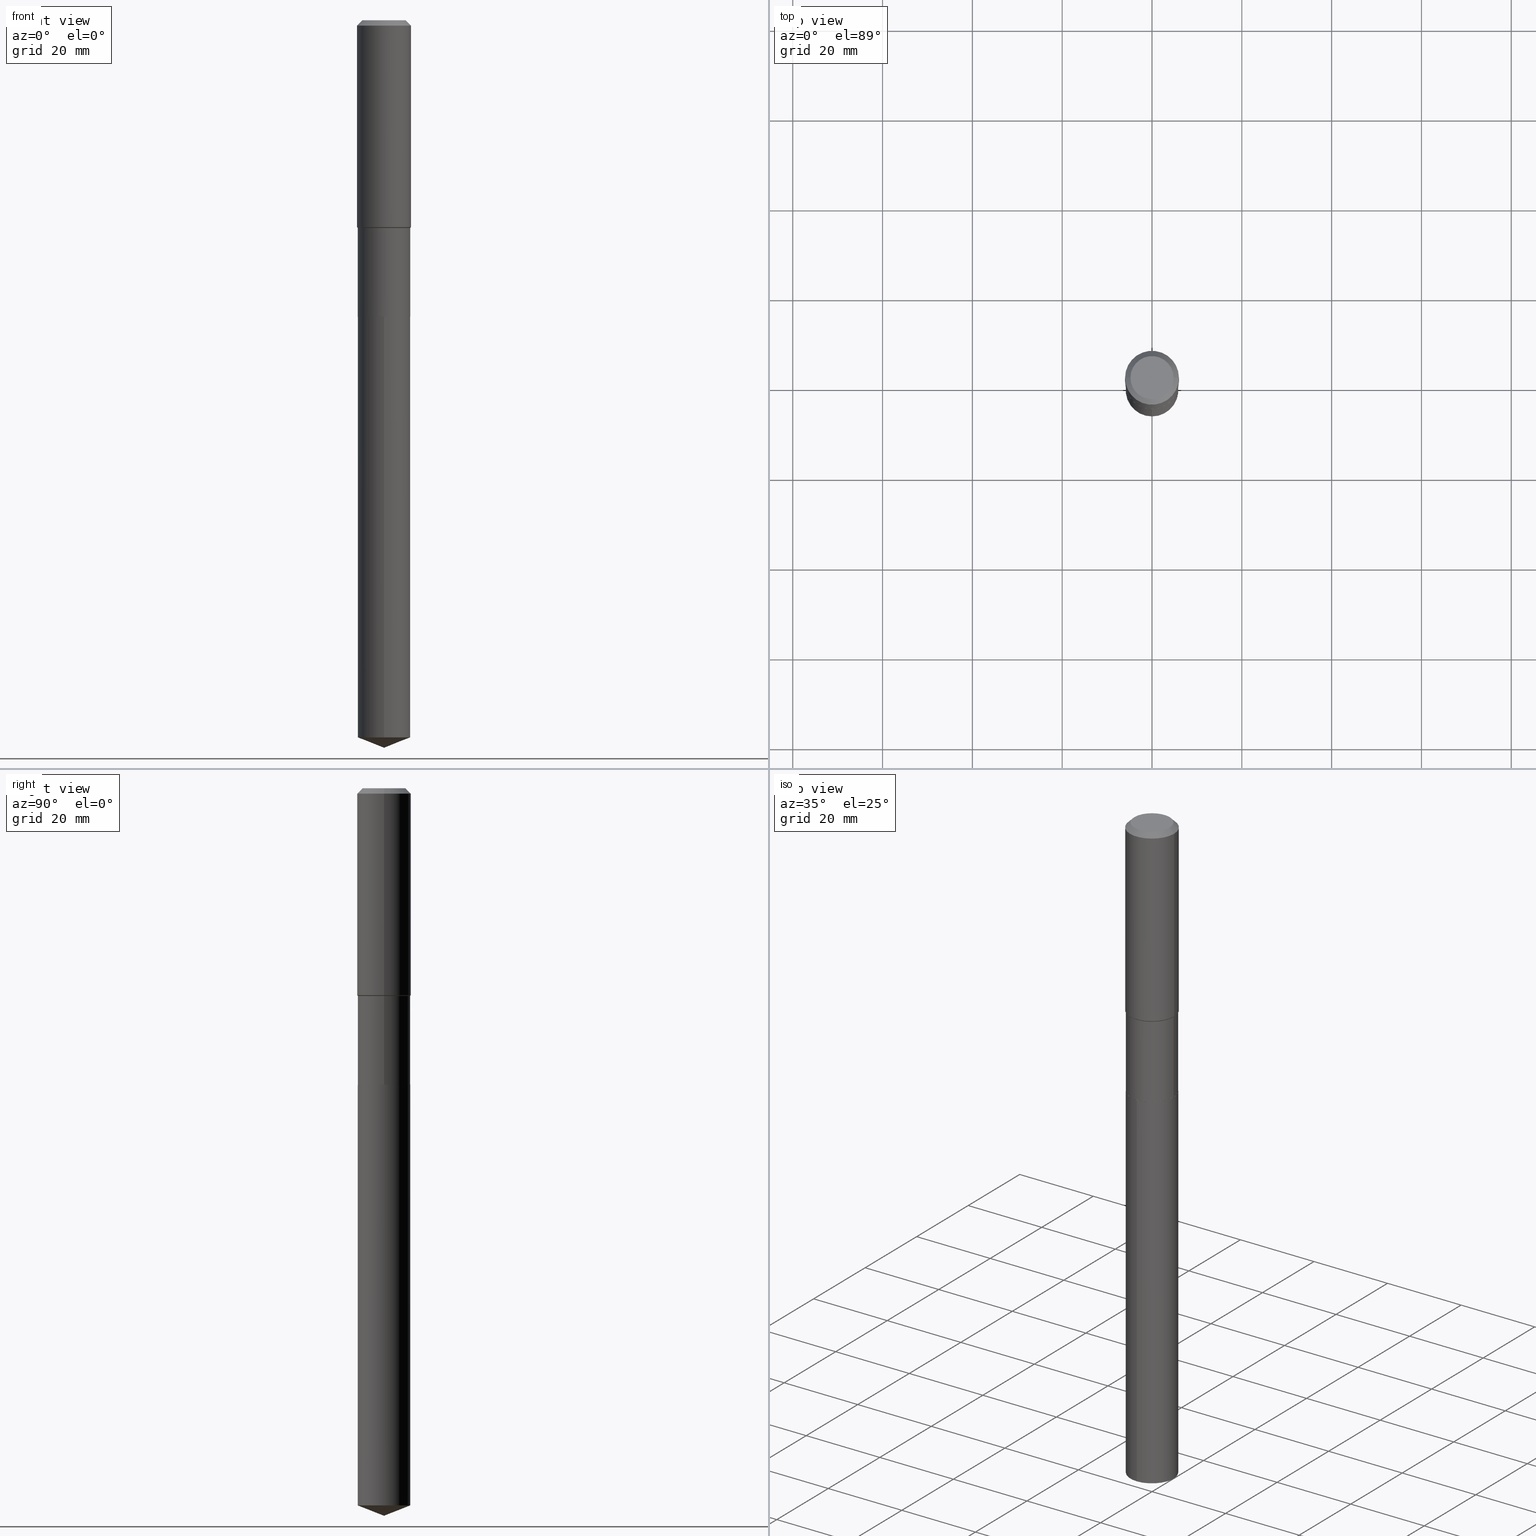
[diagram: canonical four-view strip — front | top / right | iso, engineering-drawing reading convention]
A machine part, canonical four-view strip (front | top / right | iso — engineering-drawing reading convention). The complete STEP part file that produces these views, byte-faithful:
ISO-10303-21;
HEADER;
FILE_DESCRIPTION (( 'STEP AP203' ),
    '1' );
FILE_NAME ('66693.STEP',
    '2024-04-25T03:52:17',
    ( '' ),
    ( '' ),
    'SwSTEP 2.0',
    'SolidWorks 2023',
    '' );
FILE_SCHEMA (( 'CONFIG_CONTROL_DESIGN' ));
ENDSEC;

DATA;
#1 = DATE_AND_TIME ( #409, #291 ) ;
#2 = AXIS2_PLACEMENT_3D ( 'NONE', #484, #67, #62 ) ;
#3 = VERTEX_POINT ( 'NONE', #185 ) ;
#4 = CC_DESIGN_SECURITY_CLASSIFICATION ( #268, ( #314 ) ) ;
#5 = EDGE_CURVE ( 'NONE', #479, #179, #199, .T. ) ;
#6 = PERSON_AND_ORGANIZATION ( #461, #338 ) ;
#7 = DIRECTION ( 'NONE',  ( -6.982962677686265922E-15, -1.000000000000000000, 2.372425526412734110E-15 ) ) ;
#8 = ORIENTED_EDGE ( 'NONE', *, *, #299, .F. ) ;
#9 = APPROVAL ( #262, 'UNSPECIFIED' ) ;
#10 = DIRECTION ( 'NONE',  ( -2.445468806185136597E-29, 3.491481338843145583E-15, 1.000000000000000000 ) ) ;
#11 = AXIS2_PLACEMENT_3D ( 'NONE', #13, #235, #162 ) ;
#12 = APPLICATION_CONTEXT ( 'configuration controlled 3d designs of mechanical parts and assemblies' ) ;
#13 = CARTESIAN_POINT ( 'NONE',  ( 4.452220508540662569E-29, -6.356590925497835963E-15, -1.820600000000001328 ) ) ;
#14 = CALENDAR_DATE ( 2024, 24, 4 ) ;
#15 = DIRECTION ( 'NONE',  ( -6.982962677686265922E-15, -1.000000000000000000, 4.744851052825468220E-15 ) ) ;
#16 = EDGE_LOOP ( 'NONE', ( #369, #485, #99, #8 ) ) ;
#17 = FACE_OUTER_BOUND ( 'NONE', #131, .T. ) ;
#18 = MANIFOLD_SOLID_BREP ( 'Body-Move/Copy2[2]', #19 ) ;
#19 = CLOSED_SHELL ( 'NONE', ( #284, #75, #229, #119, #349, #213, #278, #164, #91, #48, #441, #431 ) ) ;
#20 = EDGE_CURVE ( 'NONE', #3, #134, #263, .T. ) ;
#21 = AXIS2_PLACEMENT_3D ( 'NONE', #401, #282, #214 ) ;
#22 = DIRECTION ( 'NONE',  ( 1.000000000000000000, -6.982962677686266711E-15, 4.876176775795936353E-29 ) ) ;
#23 = DIRECTION ( 'NONE',  ( 1.000000000000000000, -6.982962677686265922E-15, 4.876176775795935793E-29 ) ) ;
#24 = ORIENTED_EDGE ( 'NONE', *, *, #476, .T. ) ;
#25 = CC_DESIGN_DATE_AND_TIME_ASSIGNMENT ( #345, #350, ( #268 ) ) ;
#26 = DIRECTION ( 'NONE',  ( -2.445468806185136597E-29, 3.491481338843145583E-15, 1.000000000000000000 ) ) ;
#27 = EDGE_LOOP ( 'NONE', ( #83, #332 ) ) ;
#28 = LOCAL_TIME ( 23, 52, 17.00000000000000000, #389 ) ;
#29 = LINE ( 'NONE', #245, #435 ) ;
#30 = ORIENTED_EDGE ( 'NONE', *, *, #366, .T. ) ;
#31 = CARTESIAN_POINT ( 'NONE',  ( 6.354306145991461998E-29, -9.072265110850035778E-15, -2.598400000000001597 ) ) ;
#32 = VERTEX_POINT ( 'NONE', #414 ) ;
#33 = ADVANCED_FACE ( 'NONE', ( #449 ), #371, .T. ) ;
#34 = DIRECTION ( 'NONE',  ( 1.000000000000000000, -6.982962677686267499E-15, 0.000000000000000000 ) ) ;
#35 = ORIENTED_EDGE ( 'NONE', *, *, #5, .T. ) ;
#36 = VECTOR ( 'NONE', #54, 39.37007874015748854 ) ;
#37 = APPROVAL_ROLE ( '' ) ;
#38 = ORIENTED_EDGE ( 'NONE', *, *, #356, .F. ) ;
#39 = DIRECTION ( 'NONE',  ( -2.445449169258695004E-29, 3.491509460039474509E-15, 1.000000000000000000 ) ) ;
#40 = DESIGN_CONTEXT ( 'detailed design', #150, 'design' ) ;
#41 = PERSON_AND_ORGANIZATION ( #461, #338 ) ;
#42 = EDGE_CURVE ( 'NONE', #403, #3, #472, .T. ) ;
#43 = DIRECTION ( 'NONE',  ( -2.445449169258695004E-29, 3.491509460039474509E-15, 1.000000000000000000 ) ) ;
#44 = CARTESIAN_POINT ( 'NONE',  ( 6.354306145991460877E-29, -9.072265110850034200E-15, -2.598400000000000709 ) ) ;
#45 = DIMENSIONAL_EXPONENTS ( 1.000000000000000000, 0.000000000000000000, 0.000000000000000000, 0.000000000000000000, 0.000000000000000000, 0.000000000000000000, 0.000000000000000000 ) ;
#46 = PERSON_AND_ORGANIZATION_ROLE ( 'creator' ) ;
#47 = EDGE_LOOP ( 'NONE', ( #103, #161, #58, #202 ) ) ;
#48 = ADVANCED_FACE ( 'NONE', ( #149 ), #334, .F. ) ;
#49 = DIRECTION ( 'NONE',  ( -2.445468806185136597E-29, 3.491481338843145583E-15, 1.000000000000000000 ) ) ;
#50 = CARTESIAN_POINT ( 'NONE',  ( 4.437792242584169417E-29, -6.335991185598659855E-15, -1.814700000000001090 ) ) ;
#51 = AXIS2_PLACEMENT_3D ( 'NONE', #325, #130, #480 ) ;
#52 = ORIENTED_EDGE ( 'NONE', *, *, #128, .T. ) ;
#53 = VECTOR ( 'NONE', #397, 39.37007874015748143 ) ;
#54 = DIRECTION ( 'NONE',  ( 0.7071067811860403118, -2.468850131076945266E-15, 0.7071067811870545006 ) ) ;
#55 = CARTESIAN_POINT ( 'NONE',  ( 1.537503604435947827E-28, -2.195168381745942955E-14, -6.287182417465880135 ) ) ;
#56 = EDGE_CURVE ( 'NONE', #179, #90, #152, .T. ) ;
#57 = CARTESIAN_POINT ( 'NONE',  ( 4.452220508540662569E-29, -6.356590925497835963E-15, -1.820600000000001328 ) ) ;
#58 = ORIENTED_EDGE ( 'NONE', *, *, #387, .T. ) ;
#59 = VECTOR ( 'NONE', #192, 39.37007874015748143 ) ;
#60 = AXIS2_PLACEMENT_3D ( 'NONE', #118, #340, #7 ) ;
#61 = CARTESIAN_POINT ( 'NONE',  ( 2.040285390366419992E-29, -1.525018837171794076E-14, -2.598400000000001597 ) ) ;
#62 = DIRECTION ( 'NONE',  ( 1.000000000000000000, -6.982962677686266711E-15, 4.876185090822587894E-29 ) ) ;
#63 = ORIENTED_EDGE ( 'NONE', *, *, #327, .T. ) ;
#64 = FACE_OUTER_BOUND ( 'NONE', #319, .T. ) ;
#65 = ORIENTED_EDGE ( 'NONE', *, *, #476, .F. ) ;
#66 = CIRCLE ( 'NONE', #126, 0.2298000000000000043 ) ;
#67 = DIRECTION ( 'NONE',  ( -2.445468806185136597E-29, 3.491481338843145583E-15, 1.000000000000000000 ) ) ;
#68 = ORIENTED_EDGE ( 'NONE', *, *, #205, .T. ) ;
#69 = LINE ( 'NONE', #175, #147 ) ;
#70 = ORIENTED_EDGE ( 'NONE', *, *, #128, .F. ) ;
#71 = DIRECTION ( 'NONE',  ( 1.000000000000000000, -6.982962677686267499E-15, 0.000000000000000000 ) ) ;
#72 = ORIENTED_EDGE ( 'NONE', *, *, #222, .F. ) ;
#73 = CONICAL_SURFACE ( 'NONE', #51, 0.2298000000000000043, 0.7853981633967311859 ) ;
#74 = DIRECTION ( 'NONE',  ( 2.445468806185136597E-29, -3.491481338843145583E-15, -1.000000000000000000 ) ) ;
#75 = ADVANCED_FACE ( 'NONE', ( #226 ), #306, .T. ) ;
#76 = CALENDAR_DATE ( 2024, 24, 4 ) ;
#77 = LINE ( 'NONE', #265, #225 ) ;
#78 = DIRECTION ( 'NONE',  ( -2.445468806185136597E-29, 3.491481338843145583E-15, 1.000000000000000000 ) ) ;
#79 = DIRECTION ( 'NONE',  ( -2.445468806185136597E-29, 3.491481338843145583E-15, 1.000000000000000000 ) ) ;
#80 = APPROVAL_DATE_TIME ( #375, #9 ) ;
#81 = AXIS2_PLACEMENT_3D ( 'NONE', #232, #487, #460 ) ;
#82 = CIRCLE ( 'NONE', #190, 0.2362000000000000210 ) ;
#83 = ORIENTED_EDGE ( 'NONE', *, *, #341, .T. ) ;
#84 = ADVANCED_FACE ( 'NONE', ( #374 ), #154, .T. ) ;
#85 = DIRECTION ( 'NONE',  ( 2.445449169258694724E-29, -3.491509460039474509E-15, -1.000000000000000000 ) ) ;
#86 = DIRECTION ( 'NONE',  ( 1.000000000000000000, -6.982962677686265922E-15, 0.000000000000000000 ) ) ;
#87 = ORIENTED_EDGE ( 'NONE', *, *, #272, .T. ) ;
#88 = DIRECTION ( 'NONE',  ( -2.445468806185136597E-29, 3.491481338843145583E-15, 1.000000000000000000 ) ) ;
#89 = CONICAL_SURFACE ( 'NONE', #337, 0.2302999999999998937, 0.7853981633974482790 ) ;
#90 = VERTEX_POINT ( 'NONE', #458 ) ;
#91 = ADVANCED_FACE ( 'NONE', ( #267 ), #281, .T. ) ;
#92 = CARTESIAN_POINT ( 'NONE',  ( 1.537503604435947827E-28, -2.195168381745942955E-14, -6.287182417465880135 ) ) ;
#93 = CARTESIAN_POINT ( 'NONE',  ( 1.559683025661503327E-28, -2.226849818518576806E-14, -6.377900000000001235 ) ) ;
#94 = DIRECTION ( 'NONE',  ( -2.445449169258695004E-29, 3.491509460039474509E-15, 1.000000000000000000 ) ) ;
#95 = PRODUCT_DEFINITION ( 'UNKNOWN', '', #314, #40 ) ;
#96 = AXIS2_PLACEMENT_3D ( 'NONE', #271, #74, #224 ) ;
#97 = VECTOR ( 'NONE', #94, 39.37007874015748143 ) ;
#98 = DIRECTION ( 'NONE',  ( -6.982962677686265922E-15, -1.000000000000000000, 2.372425526412734110E-15 ) ) ;
#99 = ORIENTED_EDGE ( 'NONE', *, *, #333, .F. ) ;
#100 = DIRECTION ( 'NONE',  ( 1.000000000000000000, -6.982962677686267499E-15, 0.000000000000000000 ) ) ;
#101 = ORIENTED_EDGE ( 'NONE', *, *, #234, .F. ) ;
#102 = CARTESIAN_POINT ( 'NONE',  ( 1.155239464041866207E-30, -1.649375784469512845E-16, -0.04724000000000030952 ) ) ;
#103 = ORIENTED_EDGE ( 'NONE', *, *, #193, .F. ) ;
#104 = AXIS2_PLACEMENT_3D ( 'NONE', #55, #316, #156 ) ;
#105 = APPROVAL_PERSON_ORGANIZATION ( #6, #143, #37 ) ;
#106 = EDGE_CURVE ( 'NONE', #446, #329, #77, .T. ) ;
#107 = LINE ( 'NONE', #362, #474 ) ;
#108 = ORIENTED_EDGE ( 'NONE', *, *, #333, .T. ) ;
#109 =( LENGTH_UNIT ( ) NAMED_UNIT ( * ) SI_UNIT ( $, .METRE. ) );
#110 = ORIENTED_EDGE ( 'NONE', *, *, #327, .F. ) ;
#111 =( NAMED_UNIT ( * ) SI_UNIT ( $, .STERADIAN. ) SOLID_ANGLE_UNIT ( ) );
#112 = DIRECTION ( 'NONE',  ( 2.438088387897960049E-29, -3.491481338843145188E-15, -1.000000000000000000 ) ) ;
#113 = CC_DESIGN_PERSON_AND_ORGANIZATION_ASSIGNMENT ( #347, #425, ( #268 ) ) ;
#114 = CIRCLE ( 'NONE', #354, 0.2302999999999998937 ) ;
#115 = APPROVAL_PERSON_ORGANIZATION ( #457, #9, #416 ) ;
#116 = COORDINATED_UNIVERSAL_TIME_OFFSET ( 5, 0, .BEHIND. ) ;
#117 = DIRECTION ( 'NONE',  ( -1.000000000000000000, 6.982962677686267499E-15, 0.000000000000000000 ) ) ;
#118 = CARTESIAN_POINT ( 'NONE',  ( 6.354306145991460877E-29, -9.072265110850034200E-15, -2.598400000000000709 ) ) ;
#119 = ADVANCED_FACE ( 'NONE', ( #227 ), #89, .T. ) ;
#120 = DIRECTION ( 'NONE',  ( 1.000000000000000000, -6.982962677686265922E-15, 0.000000000000000000 ) ) ;
#121 = CARTESIAN_POINT ( 'NONE',  ( -0.2302999999999999214, 1.636379920455510170E-15, -1.132830751285704470E-29 ) ) ;
#122 = CARTESIAN_POINT ( 'NONE',  ( -1.608176304670993438E-15, -0.2303000000000219594, -6.287182417465879247 ) ) ;
#123 = CARTESIAN_POINT ( 'NONE',  ( 0.2362000000000000210, -1.814313362916447834E-15, -0.04724000000000030952 ) ) ;
#124 = ADVANCED_FACE ( 'NONE', ( #189 ), #415, .T. ) ;
#125 = DIRECTION ( 'NONE',  ( -0.7071067811865474617, 7.493145998870352582E-15, 0.7071067811865474617 ) ) ;
#126 = AXIS2_PLACEMENT_3D ( 'NONE', #31, #286, #439 ) ;
#127 = CARTESIAN_POINT ( 'NONE',  ( 0.2302999999999998937, -7.964767230168983427E-15, -1.820600000000001328 ) ) ;
#128 = EDGE_CURVE ( 'NONE', #32, #446, #422, .T. ) ;
#129 = DIRECTION ( 'NONE',  ( 1.000000000000000000, -6.982962677686269077E-15, 0.000000000000000000 ) ) ;
#130 = DIRECTION ( 'NONE',  ( -2.445468806185136597E-29, 3.491481338843145583E-15, 1.000000000000000000 ) ) ;
#131 = EDGE_LOOP ( 'NONE', ( #148, #63, #257, #239 ) ) ;
#132 = AXIS2_PLACEMENT_3D ( 'NONE', #251, #395, #135 ) ;
#133 = LINE ( 'NONE', #288, #307 ) ;
#134 = VERTEX_POINT ( 'NONE', #123 ) ;
#135 = DIRECTION ( 'NONE',  ( -6.982962677686265922E-15, -1.000000000000000000, 2.372425526412734110E-15 ) ) ;
#136 = ORIENTED_EDGE ( 'NONE', *, *, #341, .F. ) ;
#137 = EDGE_CURVE ( 'NONE', #179, #479, #451, .T. ) ;
#138 = CARTESIAN_POINT ( 'NONE',  ( 4.452220508540662569E-29, -6.356590925497835963E-15, -1.820600000000001328 ) ) ;
#139 = VERTEX_POINT ( 'NONE', #280 ) ;
#140 = CIRCLE ( 'NONE', #182, 0.2303000000000000047 ) ;
#141 = DIRECTION ( 'NONE',  ( -2.445449169258695004E-29, 3.491509460039474509E-15, 1.000000000000000000 ) ) ;
#142 = ORIENTED_EDGE ( 'NONE', *, *, #408, .T. ) ;
#143 = APPROVAL ( #370, 'UNSPECIFIED' ) ;
#144 = CARTESIAN_POINT ( 'NONE',  ( 4.437792242584169417E-29, -6.335991185598659855E-15, -1.814700000000001090 ) ) ;
#145 = CALENDAR_DATE ( 2024, 24, 4 ) ;
#146 = CARTESIAN_POINT ( 'NONE',  ( 1.155239464041866207E-30, -1.649375784469512845E-16, -0.04724000000000030952 ) ) ;
#147 = VECTOR ( 'NONE', #475, 39.37007874015748143 ) ;
#148 = ORIENTED_EDGE ( 'NONE', *, *, #234, .T. ) ;
#149 = FACE_OUTER_BOUND ( 'NONE', #27, .T. ) ;
#150 = APPLICATION_CONTEXT ( 'configuration controlled 3d designs of mechanical parts and assemblies' ) ;
#151 = CC_DESIGN_DATE_AND_TIME_ASSIGNMENT ( #450, #380, ( #95 ) ) ;
#152 = LINE ( 'NONE', #121, #59 ) ;
#153 = SECURITY_CLASSIFICATION_LEVEL ( 'unclassified' ) ;
#154 = CONICAL_SURFACE ( 'NONE', #434, 99.94676754583925060, 1.195550537616117071 ) ;
#155 = AXIS2_PLACEMENT_3D ( 'NONE', #346, #49, #196 ) ;
#156 = DIRECTION ( 'NONE',  ( -6.982962677686265922E-15, -1.000000000000000000, 4.744851052825468220E-15 ) ) ;
#157 = DATE_AND_TIME ( #14, #28 ) ;
#158 = DIRECTION ( 'NONE',  ( 6.611014441532060278E-15, 0.9304175679820263500, 0.3665012267242928057 ) ) ;
#159 = APPROVAL ( #198, 'UNSPECIFIED' ) ;
#160 = DIRECTION ( 'NONE',  ( -0.7071067811860403118, 7.493145998868519270E-15, 0.7071067811870545006 ) ) ;
#161 = ORIENTED_EDGE ( 'NONE', *, *, #317, .T. ) ;
#162 = DIRECTION ( 'NONE',  ( 1.000000000000000000, -6.982962677686269077E-15, 0.000000000000000000 ) ) ;
#163 = CONICAL_SURFACE ( 'NONE', #269, 0.2302999999999998937, 0.7853981633974482790 ) ;
#164 = ADVANCED_FACE ( 'NONE', ( #242 ), #426, .T. ) ;
#165 = CARTESIAN_POINT ( 'NONE',  ( 0.000000000000000000, 0.000000000000000000, 0.000000000000000000 ) ) ;
#166 = PRODUCT_RELATED_PRODUCT_CATEGORY ( 'detail', '', ( #174 ) ) ;
#167 = CARTESIAN_POINT ( 'NONE',  ( 1.636379920455664589E-15, 0.2302999999999780778, -6.287182417465881024 ) ) ;
#168 = EDGE_LOOP ( 'NONE', ( #72, #421, #212, #407 ) ) ;
#169 = MANIFOLD_SOLID_BREP ( 'Body-Move/Copy2[1]', #292 ) ;
#170 = CARTESIAN_POINT ( 'NONE',  ( 0.000000000000000000, 0.000000000000000000, 0.000000000000000000 ) ) ;
#171 = ORIENTED_EDGE ( 'NONE', *, *, #417, .F. ) ;
#172 = AXIS2_PLACEMENT_3D ( 'NONE', #170, #211, #445 ) ;
#173 = AXIS2_PLACEMENT_3D ( 'NONE', #303, #373, #489 ) ;
#174 = PRODUCT ( '66693', '66693', '', ( #454 ) ) ;
#175 = CARTESIAN_POINT ( 'NONE',  ( 0.2362000000000000210, -1.785387205520587177E-15, -0.04724000000000030952 ) ) ;
#176 = EDGE_CURVE ( 'NONE', #244, #446, #253, .T. ) ;
#177 = ORIENTED_EDGE ( 'NONE', *, *, #197, .F. ) ;
#178 = FACE_OUTER_BOUND ( 'NONE', #221, .T. ) ;
#179 = VERTEX_POINT ( 'NONE', #309 ) ;
#180 = FACE_OUTER_BOUND ( 'NONE', #195, .T. ) ;
#181 = VERTEX_POINT ( 'NONE', #308 ) ;
#182 = AXIS2_PLACEMENT_3D ( 'NONE', #92, #207, #15 ) ;
#183 = ADVANCED_FACE ( 'NONE', ( #204 ), #392, .F. ) ;
#184 = PERSON_AND_ORGANIZATION ( #461, #338 ) ;
#185 = CARTESIAN_POINT ( 'NONE',  ( 0.2362000000000002431, -7.985366970068157957E-15, -1.814700000000001090 ) ) ;
#186 = LENGTH_MEASURE_WITH_UNIT ( LENGTH_MEASURE( 0.02539999999999999897 ), #109 );
#187 = DIRECTION ( 'NONE',  ( -6.982962677686267499E-15, -1.000000000000000000, 3.498627837350029466E-15 ) ) ;
#188 = PERSON_AND_ORGANIZATION_ROLE ( 'design_supplier' ) ;
#189 = FACE_OUTER_BOUND ( 'NONE', #16, .T. ) ;
#190 = AXIS2_PLACEMENT_3D ( 'NONE', #102, #323, #100 ) ;
#191 = PERSON_AND_ORGANIZATION ( #461, #338 ) ;
#192 = DIRECTION ( 'NONE',  ( -2.445468806185136877E-29, 3.491481338843145188E-15, 1.000000000000000000 ) ) ;
#193 = EDGE_CURVE ( 'NONE', #181, #440, #275, .T. ) ;
#194 = PERSON_AND_ORGANIZATION ( #461, #338 ) ;
#195 = EDGE_LOOP ( 'NONE', ( #448, #52, #342 ) ) ;
#196 = DIRECTION ( 'NONE',  ( 1.000000000000000000, -6.982962677686266711E-15, 4.876185090822587894E-29 ) ) ;
#197 = EDGE_CURVE ( 'NONE', #446, #244, #140, .T. ) ;
#198 = APPROVAL_STATUS ( 'not_yet_approved' ) ;
#199 = CIRCLE ( 'NONE', #81, 0.2303000000000000047 ) ;
#200 = CIRCLE ( 'NONE', #483, 0.2303000000000000047 ) ;
#201 = CARTESIAN_POINT ( 'NONE',  ( -0.2302999999999998937, -4.720211005042326385E-15, -1.820600000000001328 ) ) ;
#202 = ORIENTED_EDGE ( 'NONE', *, *, #408, .F. ) ;
#203 = CARTESIAN_POINT ( 'NONE',  ( -0.2362000000000000210, -1.572162440157448004E-15, -0.04724000000000030952 ) ) ;
#204 = FACE_OUTER_BOUND ( 'NONE', #285, .T. ) ;
#205 = EDGE_CURVE ( 'NONE', #209, #90, #300, .T. ) ;
#206 = AXIS2_PLACEMENT_3D ( 'NONE', #381, #112, #304 ) ;
#207 = DIRECTION ( 'NONE',  ( -2.445449169258695004E-29, 3.491509460039474509E-15, 1.000000000000000000 ) ) ;
#208 = VECTOR ( 'NONE', #467, 39.37007874015748143 ) ;
#209 = VERTEX_POINT ( 'NONE', #127 ) ;
#210 = FACE_OUTER_BOUND ( 'NONE', #405, .T. ) ;
#211 = DIRECTION ( 'NONE',  ( -2.445468806185136597E-29, 3.491481338843145583E-15, 1.000000000000000000 ) ) ;
#212 = ORIENTED_EDGE ( 'NONE', *, *, #417, .T. ) ;
#213 = ADVANCED_FACE ( 'NONE', ( #241 ), #355, .T. ) ;
#214 = DIRECTION ( 'NONE',  ( -6.982962677686267499E-15, -1.000000000000000000, 3.498627837350029466E-15 ) ) ;
#215 = ORIENTED_EDGE ( 'NONE', *, *, #197, .T. ) ;
#216 = AXIS2_PLACEMENT_3D ( 'NONE', #466, #10, #388 ) ;
#217 = CC_DESIGN_APPROVAL ( #143, ( #95 ) ) ;
#218 = DIRECTION ( 'NONE',  ( 0.7071067811865474617, -2.468850131082256666E-15, 0.7071067811865474617 ) ) ;
#219 = EDGE_LOOP ( 'NONE', ( #68, #236, #101, #171 ) ) ;
#220 = CARTESIAN_POINT ( 'NONE',  ( 1.636379920455664984E-15, 0.2302999999999909564, -2.598400000000001597 ) ) ;
#221 = EDGE_LOOP ( 'NONE', ( #481, #398, #248, #452 ) ) ;
#222 = EDGE_CURVE ( 'NONE', #90, #403, #351, .T. ) ;
#223 =( NAMED_UNIT ( * ) PLANE_ANGLE_UNIT ( ) SI_UNIT ( $, .RADIAN. ) );
#224 = DIRECTION ( 'NONE',  ( -1.000000000000000000, 6.982962677686267499E-15, 0.000000000000000000 ) ) ;
#225 = VECTOR ( 'NONE', #378, 39.37007874015748143 ) ;
#226 = FACE_OUTER_BOUND ( 'NONE', #47, .T. ) ;
#227 = FACE_OUTER_BOUND ( 'NONE', #219, .T. ) ;
#228 = APPLICATION_PROTOCOL_DEFINITION ( 'international standard', 'config_control_design', 1994, #12 ) ;
#229 = ADVANCED_FACE ( 'NONE', ( #17 ), #315, .T. ) ;
#230 = ORIENTED_EDGE ( 'NONE', *, *, #399, .T. ) ;
#231 = CIRCLE ( 'NONE', #132, 0.2303000000000000047 ) ;
#232 = CARTESIAN_POINT ( 'NONE',  ( 6.353083411588368076E-29, -9.070519370180611907E-15, -2.597900000000000542 ) ) ;
#233 = DIRECTION ( 'NONE',  ( -2.445468806185136597E-29, 3.491481338843145583E-15, 1.000000000000000000 ) ) ;
#234 = EDGE_CURVE ( 'NONE', #3, #403, #400, .T. ) ;
#235 = DIRECTION ( 'NONE',  ( -2.445468806185136597E-29, 3.491481338843145583E-15, 1.000000000000000000 ) ) ;
#236 = ORIENTED_EDGE ( 'NONE', *, *, #222, .T. ) ;
#237 = LOCAL_TIME ( 23, 52, 17.00000000000000000, #413 ) ;
#238 = DIRECTION ( 'NONE',  ( 1.000000000000000000, -6.982962677686266711E-15, 4.876176775795935793E-29 ) ) ;
#239 = ORIENTED_EDGE ( 'NONE', *, *, #20, .F. ) ;
#240 = APPROVAL_ROLE ( '' ) ;
#241 = FACE_OUTER_BOUND ( 'NONE', #438, .T. ) ;
#242 = FACE_OUTER_BOUND ( 'NONE', #367, .T. ) ;
#243 = EDGE_CURVE ( 'NONE', #139, #479, #429, .T. ) ;
#244 = VERTEX_POINT ( 'NONE', #122 ) ;
#245 = CARTESIAN_POINT ( 'NONE',  ( 0.2302999999999998937, -7.964767230168983427E-15, -1.820600000000001328 ) ) ;
#246 = CONICAL_SURFACE ( 'NONE', #21, 99.94676754583925060, 1.195550537616117071 ) ;
#247 = LINE ( 'NONE', #433, #97 ) ;
#248 = ORIENTED_EDGE ( 'NONE', *, *, #243, .T. ) ;
#249 = CARTESIAN_POINT ( 'NONE',  ( -0.2298000000000000043, -7.436788676899211953E-15, -2.598400000000001597 ) ) ;
#250 = VERTEX_POINT ( 'NONE', #203 ) ;
#251 = CARTESIAN_POINT ( 'NONE',  ( 6.354306145991460877E-29, -9.072265110850034200E-15, -2.598400000000000709 ) ) ;
#252 = ORIENTED_EDGE ( 'NONE', *, *, #56, .T. ) ;
#253 = CIRCLE ( 'NONE', #104, 0.2303000000000000047 ) ;
#254 = CARTESIAN_POINT ( 'NONE',  ( -0.1889600000000000168, 1.401969416799070942E-15, 3.855188123706346622E-18 ) ) ;
#255 = CC_DESIGN_PERSON_AND_ORGANIZATION_ASSIGNMENT ( #184, #258, ( #95 ) ) ;
#256 = ORIENTED_EDGE ( 'NONE', *, *, #299, .T. ) ;
#257 = ORIENTED_EDGE ( 'NONE', *, *, #387, .F. ) ;
#258 = PERSON_AND_ORGANIZATION_ROLE ( 'creator' ) ;
#259 = DIRECTION ( 'NONE',  ( -6.982962677686265922E-15, -1.000000000000000000, 2.372425526412734110E-15 ) ) ;
#260 = AXIS2_PLACEMENT_3D ( 'NONE', #144, #411, #120 ) ;
#261 = AXIS2_PLACEMENT_3D ( 'NONE', #447, #296, #335 ) ;
#262 = APPROVAL_STATUS ( 'not_yet_approved' ) ;
#263 = LINE ( 'NONE', #336, #473 ) ;
#264 = EDGE_CURVE ( 'NONE', #396, #179, #348, .T. ) ;
#265 = CARTESIAN_POINT ( 'NONE',  ( 1.636379920455574068E-15, 0.2302999999999909286, -2.598400000000001597 ) ) ;
#266 = CARTESIAN_POINT ( 'NONE',  ( 0.2303000000000000047, -1.067869567485175779E-14, -2.597900000000000542 ) ) ;
#267 = FACE_OUTER_BOUND ( 'NONE', #295, .T. ) ;
#268 = SECURITY_CLASSIFICATION ( '', '', #153 ) ;
#269 = AXIS2_PLACEMENT_3D ( 'NONE', #57, #469, #129 ) ;
#270 = APPROVAL_PERSON_ORGANIZATION ( #459, #159, #240 ) ;
#271 = CARTESIAN_POINT ( 'NONE',  ( 1.155239464041866207E-30, -1.649375784469512845E-16, -0.04724000000000030952 ) ) ;
#272 = EDGE_CURVE ( 'NONE', #32, #244, #310, .T. ) ;
#273 = CARTESIAN_POINT ( 'NONE',  ( -0.2298000000000000043, -7.439437904073325520E-15, -2.598400000000001597 ) ) ;
#274 = CARTESIAN_POINT ( 'NONE',  ( 6.354306145991460877E-29, -9.072265110850034200E-15, -2.598400000000000709 ) ) ;
#275 = CIRCLE ( 'NONE', #155, 0.1889600000000000168 ) ;
#276 = FACE_OUTER_BOUND ( 'NONE', #168, .T. ) ;
#277 = ORIENTED_EDGE ( 'NONE', *, *, #366, .F. ) ;
#278 = ADVANCED_FACE ( 'NONE', ( #276 ), #163, .T. ) ;
#279 = DIRECTION ( 'NONE',  ( -2.445468806185136597E-29, 3.491481338843145583E-15, 1.000000000000000000 ) ) ;
#280 = CARTESIAN_POINT ( 'NONE',  ( 0.2298000000000000043, -1.067694993418234023E-14, -2.598400000000001597 ) ) ;
#281 = CONICAL_SURFACE ( 'NONE', #344, 0.2362000000000000210, 0.7853981633974452814 ) ;
#282 = DIRECTION ( 'NONE',  ( -2.445449169258695004E-29, 3.491509460039474509E-15, 1.000000000000000000 ) ) ;
#283 = AXIS2_PLACEMENT_3D ( 'NONE', #61, #357, #23 ) ;
#284 = ADVANCED_FACE ( 'NONE', ( #64 ), #294, .T. ) ;
#285 = EDGE_LOOP ( 'NONE', ( #108, #418 ) ) ;
#286 = DIRECTION ( 'NONE',  ( -2.445468806185136597E-29, 3.491481338843145583E-15, 1.000000000000000000 ) ) ;
#287 = ORIENTED_EDGE ( 'NONE', *, *, #243, .F. ) ;
#288 = CARTESIAN_POINT ( 'NONE',  ( -0.2362000000000001321, 1.678301941865357577E-15, -1.161852468318209457E-29 ) ) ;
#289 = ORIENTED_EDGE ( 'NONE', *, *, #424, .F. ) ;
#290 = CARTESIAN_POINT ( 'NONE',  ( -1.608176304671083368E-15, -0.2303000000000090808, -2.598400000000000265 ) ) ;
#291 = LOCAL_TIME ( 23, 52, 17.00000000000000000, #116 ) ;
#292 = CLOSED_SHELL ( 'NONE', ( #124, #311, #84, #33, #183 ) ) ;
#293 = ORIENTED_EDGE ( 'NONE', *, *, #205, .F. ) ;
#294 = CONICAL_SURFACE ( 'NONE', #444, 0.2298000000000000043, 0.7853981633967311859 ) ;
#295 = EDGE_LOOP ( 'NONE', ( #305, #136, #142, #24 ) ) ;
#296 = DIRECTION ( 'NONE',  ( -2.445468806185136597E-29, 3.491481338843145583E-15, 1.000000000000000000 ) ) ;
#297 = CARTESIAN_POINT ( 'NONE',  ( -8.068064506756283072E-28, 1.151925772486896208E-13, 32.99217874015747753 ) ) ;
#298 = DIRECTION ( 'NONE',  ( 2.445468806185136597E-29, -3.491481338843145583E-15, -1.000000000000000000 ) ) ;
#299 = EDGE_CURVE ( 'NONE', #244, #360, #247, .T. ) ;
#300 = CIRCLE ( 'NONE', #11, 0.2302999999999998937 ) ;
#301 =( CONVERSION_BASED_UNIT ( 'INCH', #186 ) LENGTH_UNIT ( ) NAMED_UNIT ( #45 ) );
#302 = DIRECTION ( 'NONE',  ( -2.445468806185136877E-29, 3.491481338843145188E-15, 1.000000000000000000 ) ) ;
#303 = CARTESIAN_POINT ( 'NONE',  ( 0.000000000000000000, 0.000000000000000000, 0.000000000000000000 ) ) ;
#304 = DIRECTION ( 'NONE',  ( -1.000000000000000000, 6.982962677686265922E-15, -4.876176775795935793E-29 ) ) ;
#305 = ORIENTED_EDGE ( 'NONE', *, *, #317, .F. ) ;
#306 = CONICAL_SURFACE ( 'NONE', #96, 0.2362000000000000210, 0.7853981633974452814 ) ;
#307 = VECTOR ( 'NONE', #328, 39.37007874015748143 ) ;
#308 = CARTESIAN_POINT ( 'NONE',  ( 0.1889600000000000168, -1.540873453589747935E-15, 3.855188123725863225E-18 ) ) ;
#309 = CARTESIAN_POINT ( 'NONE',  ( -0.2302999999999999770, -6.077175227383711991E-15, -2.597900000000000542 ) ) ;
#310 = LINE ( 'NONE', #93, #208 ) ;
#311 = ADVANCED_FACE ( 'NONE', ( #180 ), #246, .T. ) ;
#312 = LOCAL_TIME ( 23, 52, 17.00000000000000000, #382 ) ;
#313 = VECTOR ( 'NONE', #158, 39.37007874015748143 ) ;
#314 = PRODUCT_DEFINITION_FORMATION_WITH_SPECIFIED_SOURCE ( 'ANY', '', #174, .NOT_KNOWN. ) ;
#315 = CYLINDRICAL_SURFACE ( 'NONE', #216, 0.2362000000000001321 ) ;
#316 = DIRECTION ( 'NONE',  ( -2.445449169258695004E-29, 3.491509460039474509E-15, 1.000000000000000000 ) ) ;
#317 = EDGE_CURVE ( 'NONE', #181, #134, #69, .T. ) ;
#318 = FACE_OUTER_BOUND ( 'NONE', #423, .T. ) ;
#319 = EDGE_LOOP ( 'NONE', ( #30, #364, #443, #287 ) ) ;
#320 = AXIS2_PLACEMENT_3D ( 'NONE', #390, #233, #86 ) ;
#321 = CARTESIAN_POINT ( 'NONE',  ( -0.2362000000000002431, -4.657689243733302672E-15, -1.814700000000001090 ) ) ;
#322 = ORIENTED_EDGE ( 'NONE', *, *, #399, .F. ) ;
#323 = DIRECTION ( 'NONE',  ( -2.445468806185136597E-29, 3.491481338843145583E-15, 1.000000000000000000 ) ) ;
#324 = EDGE_LOOP ( 'NONE', ( #70, #87, #177 ) ) ;
#325 = CARTESIAN_POINT ( 'NONE',  ( 6.354306145991461998E-29, -9.072265110850035778E-15, -2.598400000000001597 ) ) ;
#326 = ORIENTED_EDGE ( 'NONE', *, *, #456, .F. ) ;
#327 = EDGE_CURVE ( 'NONE', #403, #250, #133, .T. ) ;
#328 = DIRECTION ( 'NONE',  ( -2.445468806185136877E-29, 3.491481338843145188E-15, 1.000000000000000000 ) ) ;
#329 = VERTEX_POINT ( 'NONE', #220 ) ;
#330 = AXIS2_PLACEMENT_3D ( 'NONE', #165, #343, #22 ) ;
#331 = APPROVAL_DATE_TIME ( #1, #143 ) ;
#332 = ORIENTED_EDGE ( 'NONE', *, *, #193, .T. ) ;
#333 = EDGE_CURVE ( 'NONE', #360, #329, #231, .T. ) ;
#334 = PLANE ( 'NONE',  #206 ) ;
#335 = DIRECTION ( 'NONE',  ( 1.000000000000000000, -6.982962677686267499E-15, 0.000000000000000000 ) ) ;
#336 = CARTESIAN_POINT ( 'NONE',  ( 0.2362000000000001321, -1.649375784469497117E-15, 1.151752954443000789E-29 ) ) ;
#337 = AXIS2_PLACEMENT_3D ( 'NONE', #455, #79, #376 ) ;
#338 = ORGANIZATION ( 'UNSPECIFIED', 'UNSPECIFIED', '' ) ;
#339 = APPLICATION_PROTOCOL_DEFINITION ( 'international standard', 'config_control_design', 1994, #150 ) ;
#340 = DIRECTION ( 'NONE',  ( -2.445449169258695004E-29, 3.491509460039474509E-15, 1.000000000000000000 ) ) ;
#341 = EDGE_CURVE ( 'NONE', #440, #181, #427, .T. ) ;
#342 = ORIENTED_EDGE ( 'NONE', *, *, #176, .F. ) ;
#343 = DIRECTION ( 'NONE',  ( -2.445468806185136597E-29, 3.491481338843145583E-15, 1.000000000000000000 ) ) ;
#344 = AXIS2_PLACEMENT_3D ( 'NONE', #146, #298, #117 ) ;
#345 = DATE_AND_TIME ( #391, #312 ) ;
#346 = CARTESIAN_POINT ( 'NONE',  ( -9.427742298522546243E-47, 1.346031739168365344E-32, 3.855188123715862256E-18 ) ) ;
#347 = PERSON_AND_ORGANIZATION ( #461, #338 ) ;
#348 = LINE ( 'NONE', #273, #462 ) ;
#349 = ADVANCED_FACE ( 'NONE', ( #318 ), #404, .T. ) ;
#350 = DATE_TIME_ROLE ( 'classification_date' ) ;
#351 = LINE ( 'NONE', #201, #379 ) ;
#352 = ORIENTED_EDGE ( 'NONE', *, *, #20, .T. ) ;
#353 = CC_DESIGN_APPROVAL ( #159, ( #268 ) ) ;
#354 = AXIS2_PLACEMENT_3D ( 'NONE', #138, #368, #365 ) ;
#355 = CYLINDRICAL_SURFACE ( 'NONE', #420, 0.2302999999999999214 ) ;
#356 = EDGE_CURVE ( 'NONE', #329, #360, #200, .T. ) ;
#357 = DIRECTION ( 'NONE',  ( -2.438088387897960049E-29, 3.491481338843145188E-15, 1.000000000000000000 ) ) ;
#358 = ORIENTED_EDGE ( 'NONE', *, *, #56, .F. ) ;
#359 = CARTESIAN_POINT ( 'NONE',  ( 0.2302999999999999214, -1.608176304671146674E-15, 1.122983511465803578E-29 ) ) ;
#360 = VERTEX_POINT ( 'NONE', #290 ) ;
#361 = AXIS2_PLACEMENT_3D ( 'NONE', #50, #279, #432 ) ;
#362 = CARTESIAN_POINT ( 'NONE',  ( -0.2362000000000000210, 1.484438206022545019E-15, -0.04724000000000030952 ) ) ;
#363 = CIRCLE ( 'NONE', #453, 0.2362000000000000210 ) ;
#364 = ORIENTED_EDGE ( 'NONE', *, *, #264, .T. ) ;
#365 = DIRECTION ( 'NONE',  ( 1.000000000000000000, -6.982962677686269077E-15, 0.000000000000000000 ) ) ;
#366 = EDGE_CURVE ( 'NONE', #139, #396, #66, .T. ) ;
#367 = EDGE_LOOP ( 'NONE', ( #110, #471, #352, #65 ) ) ;
#368 = DIRECTION ( 'NONE',  ( -2.445468806185136597E-29, 3.491481338843145583E-15, 1.000000000000000000 ) ) ;
#369 = ORIENTED_EDGE ( 'NONE', *, *, #176, .T. ) ;
#370 = APPROVAL_STATUS ( 'not_yet_approved' ) ;
#371 = CYLINDRICAL_SURFACE ( 'NONE', #419, 0.2303000000000000047 ) ;
#372 = CC_DESIGN_PERSON_AND_ORGANIZATION_ASSIGNMENT ( #194, #188, ( #314 ) ) ;
#373 = DIRECTION ( 'NONE',  ( 0.000000000000000000, 0.000000000000000000, 1.000000000000000000 ) ) ;
#374 = FACE_OUTER_BOUND ( 'NONE', #324, .T. ) ;
#375 = DATE_AND_TIME ( #76, #237 ) ;
#376 = DIRECTION ( 'NONE',  ( 1.000000000000000000, -6.982962677686269077E-15, 0.000000000000000000 ) ) ;
#377 = CARTESIAN_POINT ( 'NONE',  ( 1.155239464041866207E-30, -1.649375784469512845E-16, -0.04724000000000030952 ) ) ;
#378 = DIRECTION ( 'NONE',  ( -2.445449169258695004E-29, 3.491509460039474509E-15, 1.000000000000000000 ) ) ;
#379 = VECTOR ( 'NONE', #125, 39.37007874015748854 ) ;
#380 = DATE_TIME_ROLE ( 'creation_date' ) ;
#381 = CARTESIAN_POINT ( 'NONE',  ( -4.713871149261273121E-47, 6.730158695841826722E-33, 1.927594061857931128E-18 ) ) ;
#382 = COORDINATED_UNIVERSAL_TIME_OFFSET ( 5, 0, .BEHIND. ) ;
#383 = CARTESIAN_POINT ( 'NONE',  ( 1.559693320064520861E-28, -2.226835204495268597E-14, -6.377900000000001235 ) ) ;
#384 = CARTESIAN_POINT ( 'NONE',  ( 0.000000000000000000, 0.000000000000000000, 0.000000000000000000 ) ) ;
#385 = EDGE_LOOP ( 'NONE', ( #490, #215, #256, #38 ) ) ;
#386 = LOCAL_TIME ( 23, 52, 17.00000000000000000, #486 ) ;
#387 = EDGE_CURVE ( 'NONE', #134, #250, #82, .T. ) ;
#388 = DIRECTION ( 'NONE',  ( 1.000000000000000000, -6.982962677686266711E-15, 4.876176775795936353E-29 ) ) ;
#389 = COORDINATED_UNIVERSAL_TIME_OFFSET ( 5, 0, .BEHIND. ) ;
#390 = CARTESIAN_POINT ( 'NONE',  ( 6.353083411588368076E-29, -9.070519370180611907E-15, -2.597900000000000542 ) ) ;
#391 = CALENDAR_DATE ( 2024, 24, 4 ) ;
#392 = PLANE ( 'NONE',  #393 ) ;
#393 = AXIS2_PLACEMENT_3D ( 'NONE', #274, #85, #468 ) ;
#394 = PLANE ( 'NONE',  #283 ) ;
#395 = DIRECTION ( 'NONE',  ( -2.445449169258695004E-29, 3.491509460039474509E-15, 1.000000000000000000 ) ) ;
#396 = VERTEX_POINT ( 'NONE', #249 ) ;
#397 = DIRECTION ( 'NONE',  ( -2.445468806185136877E-29, 3.491481338843145188E-15, 1.000000000000000000 ) ) ;
#398 = ORIENTED_EDGE ( 'NONE', *, *, #456, .T. ) ;
#399 = EDGE_CURVE ( 'NONE', #479, #209, #470, .T. ) ;
#400 = CIRCLE ( 'NONE', #361, 0.2362000000000002431 ) ;
#401 = CARTESIAN_POINT ( 'NONE',  ( -8.068064506756283072E-28, 1.151925772486896208E-13, 32.99217874015747753 ) ) ;
#402 = CC_DESIGN_APPROVAL ( #9, ( #314 ) ) ;
#403 = VERTEX_POINT ( 'NONE', #321 ) ;
#404 = CYLINDRICAL_SURFACE ( 'NONE', #172, 0.2302999999999999214 ) ;
#405 = EDGE_LOOP ( 'NONE', ( #277, #326 ) ) ;
#406 = PERSON_AND_ORGANIZATION_ROLE ( 'design_owner' ) ;
#407 = ORIENTED_EDGE ( 'NONE', *, *, #42, .F. ) ;
#408 = EDGE_CURVE ( 'NONE', #440, #250, #107, .T. ) ;
#409 = CALENDAR_DATE ( 2024, 24, 4 ) ;
#410 = ADVANCED_BREP_SHAPE_REPRESENTATION ( '66693', ( #169, #18, #173 ), #428 ) ;
#411 = DIRECTION ( 'NONE',  ( -2.445468806185136597E-29, 3.491481338843145583E-15, 1.000000000000000000 ) ) ;
#412 = CIRCLE ( 'NONE', #261, 0.2298000000000000043 ) ;
#413 = COORDINATED_UNIVERSAL_TIME_OFFSET ( 5, 0, .BEHIND. ) ;
#414 = CARTESIAN_POINT ( 'NONE',  ( 1.559683025661503327E-28, -2.226849818518576806E-14, -6.377900000000001235 ) ) ;
#415 = CYLINDRICAL_SURFACE ( 'NONE', #60, 0.2303000000000000047 ) ;
#416 = APPROVAL_ROLE ( '' ) ;
#417 = EDGE_CURVE ( 'NONE', #209, #3, #29, .T. ) ;
#418 = ORIENTED_EDGE ( 'NONE', *, *, #356, .T. ) ;
#419 = AXIS2_PLACEMENT_3D ( 'NONE', #44, #43, #259 ) ;
#420 = AXIS2_PLACEMENT_3D ( 'NONE', #384, #88, #238 ) ;
#421 = ORIENTED_EDGE ( 'NONE', *, *, #424, .T. ) ;
#422 = LINE ( 'NONE', #383, #313 ) ;
#423 = EDGE_LOOP ( 'NONE', ( #35, #252, #293, #322 ) ) ;
#424 = EDGE_CURVE ( 'NONE', #90, #209, #114, .T. ) ;
#425 = PERSON_AND_ORGANIZATION_ROLE ( 'classification_officer' ) ;
#426 = CYLINDRICAL_SURFACE ( 'NONE', #330, 0.2362000000000001321 ) ;
#427 = CIRCLE ( 'NONE', #2, 0.1889600000000000168 ) ;
#428 =( GEOMETRIC_REPRESENTATION_CONTEXT ( 3 ) GLOBAL_UNCERTAINTY_ASSIGNED_CONTEXT ( ( #488 ) ) GLOBAL_UNIT_ASSIGNED_CONTEXT ( ( #301, #223, #111 ) ) REPRESENTATION_CONTEXT ( 'NONE', 'WORKASPACE' ) );
#429 = LINE ( 'NONE', #463, #36 ) ;
#430 = SHAPE_DEFINITION_REPRESENTATION ( #436, #410 ) ;
#431 = ADVANCED_FACE ( 'NONE', ( #178 ), #73, .T. ) ;
#432 = DIRECTION ( 'NONE',  ( 1.000000000000000000, -6.982962677686265922E-15, 0.000000000000000000 ) ) ;
#433 = CARTESIAN_POINT ( 'NONE',  ( -1.608176304671083368E-15, -0.2303000000000090808, -2.598400000000000265 ) ) ;
#434 = AXIS2_PLACEMENT_3D ( 'NONE', #297, #39, #187 ) ;
#435 = VECTOR ( 'NONE', #218, 39.37007874015748854 ) ;
#436 = PRODUCT_DEFINITION_SHAPE ( 'NONE', 'NONE',  #95 ) ;
#437 = DIRECTION ( 'NONE',  ( -0.7071067811865453523, 2.468850131082234184E-15, -0.7071067811865496822 ) ) ;
#438 = EDGE_LOOP ( 'NONE', ( #358, #477, #230, #289 ) ) ;
#439 = DIRECTION ( 'NONE',  ( 1.000000000000000000, -6.982962677686267499E-15, 0.000000000000000000 ) ) ;
#440 = VERTEX_POINT ( 'NONE', #254 ) ;
#441 = ADVANCED_FACE ( 'NONE', ( #210 ), #394, .F. ) ;
#442 = CARTESIAN_POINT ( 'NONE',  ( 6.354306145991460877E-29, -9.072265110850034200E-15, -2.598400000000000709 ) ) ;
#443 = ORIENTED_EDGE ( 'NONE', *, *, #5, .F. ) ;
#444 = AXIS2_PLACEMENT_3D ( 'NONE', #478, #26, #34 ) ;
#445 = DIRECTION ( 'NONE',  ( 1.000000000000000000, -6.982962677686266711E-15, 4.876176775795935793E-29 ) ) ;
#446 = VERTEX_POINT ( 'NONE', #167 ) ;
#447 = CARTESIAN_POINT ( 'NONE',  ( 6.354306145991461998E-29, -9.072265110850035778E-15, -2.598400000000001597 ) ) ;
#448 = ORIENTED_EDGE ( 'NONE', *, *, #272, .F. ) ;
#449 = FACE_OUTER_BOUND ( 'NONE', #385, .T. ) ;
#450 = DATE_AND_TIME ( #145, #386 ) ;
#451 = CIRCLE ( 'NONE', #320, 0.2303000000000000047 ) ;
#452 = ORIENTED_EDGE ( 'NONE', *, *, #137, .F. ) ;
#453 = AXIS2_PLACEMENT_3D ( 'NONE', #377, #78, #71 ) ;
#454 = MECHANICAL_CONTEXT ( 'NONE', #12, 'mechanical' ) ;
#455 = CARTESIAN_POINT ( 'NONE',  ( 4.452220508540662569E-29, -6.356590925497835963E-15, -1.820600000000001328 ) ) ;
#456 = EDGE_CURVE ( 'NONE', #396, #139, #412, .T. ) ;
#457 = PERSON_AND_ORGANIZATION ( #461, #338 ) ;
#458 = CARTESIAN_POINT ( 'NONE',  ( -0.2302999999999998937, -6.077175227383712779E-15, -1.820600000000001328 ) ) ;
#459 = PERSON_AND_ORGANIZATION ( #461, #338 ) ;
#460 = DIRECTION ( 'NONE',  ( 1.000000000000000000, -6.982962677686265922E-15, 0.000000000000000000 ) ) ;
#461 = PERSON ( 'UNSPECIFIED', 'UNSPECIFIED', 'UNSPECIFIED', ('UNSPECIFIED'), ('UNSPECIFIED'), ('UNSPECIFIED') ) ;
#462 = VECTOR ( 'NONE', #160, 39.37007874015748854 ) ;
#463 = CARTESIAN_POINT ( 'NONE',  ( 0.2298000000000000043, -1.067694993418234023E-14, -2.598400000000001597 ) ) ;
#464 = CC_DESIGN_PERSON_AND_ORGANIZATION_ASSIGNMENT ( #41, #46, ( #314 ) ) ;
#465 = APPROVAL_DATE_TIME ( #157, #159 ) ;
#466 = CARTESIAN_POINT ( 'NONE',  ( 0.000000000000000000, 0.000000000000000000, 0.000000000000000000 ) ) ;
#467 = DIRECTION ( 'NONE',  ( -6.497071151882113525E-15, -0.9304175679820235745, 0.3665012267242993560 ) ) ;
#468 = DIRECTION ( 'NONE',  ( 6.982962677686265922E-15, 1.000000000000000000, -3.491509460039474509E-15 ) ) ;
#469 = DIRECTION ( 'NONE',  ( -2.445468806185136597E-29, 3.491481338843145583E-15, 1.000000000000000000 ) ) ;
#470 = LINE ( 'NONE', #359, #53 ) ;
#471 = ORIENTED_EDGE ( 'NONE', *, *, #42, .T. ) ;
#472 = CIRCLE ( 'NONE', #260, 0.2362000000000002431 ) ;
#473 = VECTOR ( 'NONE', #302, 39.37007874015748143 ) ;
#474 = VECTOR ( 'NONE', #437, 39.37007874015748143 ) ;
#475 = DIRECTION ( 'NONE',  ( 0.7071067811865453523, -7.319954787623248157E-15, -0.7071067811865496822 ) ) ;
#476 = EDGE_CURVE ( 'NONE', #250, #134, #363, .T. ) ;
#477 = ORIENTED_EDGE ( 'NONE', *, *, #137, .T. ) ;
#478 = CARTESIAN_POINT ( 'NONE',  ( 6.354306145991461998E-29, -9.072265110850035778E-15, -2.598400000000001597 ) ) ;
#479 = VERTEX_POINT ( 'NONE', #266 ) ;
#480 = DIRECTION ( 'NONE',  ( 1.000000000000000000, -6.982962677686267499E-15, 0.000000000000000000 ) ) ;
#481 = ORIENTED_EDGE ( 'NONE', *, *, #264, .F. ) ;
#482 = CC_DESIGN_PERSON_AND_ORGANIZATION_ASSIGNMENT ( #191, #406, ( #174 ) ) ;
#483 = AXIS2_PLACEMENT_3D ( 'NONE', #442, #141, #98 ) ;
#484 = CARTESIAN_POINT ( 'NONE',  ( -9.427742298522546243E-47, 1.346031739168365344E-32, 3.855188123715862256E-18 ) ) ;
#485 = ORIENTED_EDGE ( 'NONE', *, *, #106, .T. ) ;
#486 = COORDINATED_UNIVERSAL_TIME_OFFSET ( 5, 0, .BEHIND. ) ;
#487 = DIRECTION ( 'NONE',  ( -2.445468806185136597E-29, 3.491481338843145583E-15, 1.000000000000000000 ) ) ;
#488 = UNCERTAINTY_MEASURE_WITH_UNIT (LENGTH_MEASURE( 1.000000000000000082E-05 ), #301, 'distance_accuracy_value', 'NONE');
#489 = DIRECTION ( 'NONE',  ( 1.000000000000000000, 0.000000000000000000, 0.000000000000000000 ) ) ;
#490 = ORIENTED_EDGE ( 'NONE', *, *, #106, .F. ) ;
ENDSEC;
END-ISO-10303-21;
